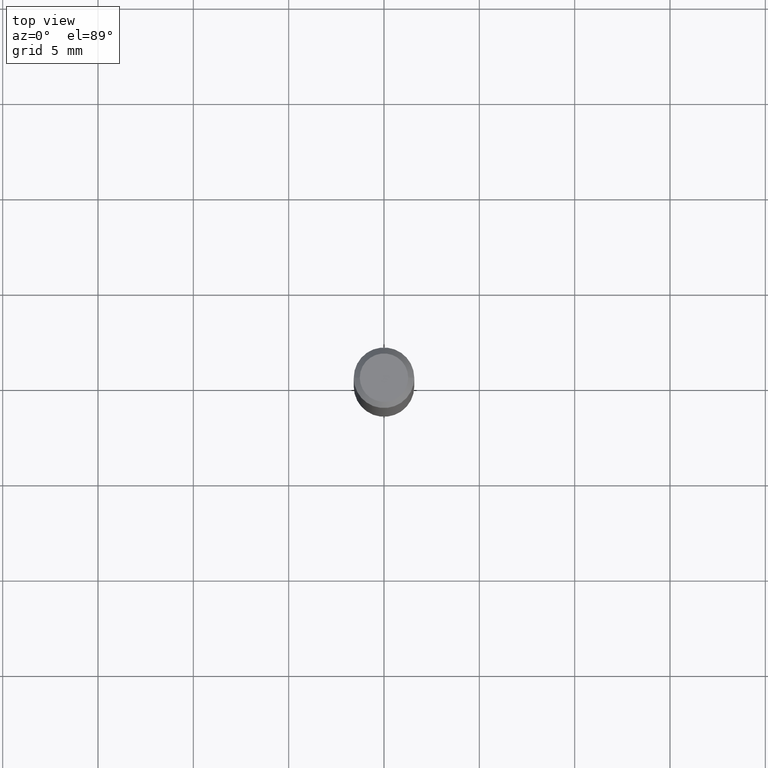
[diagram: clean part render]
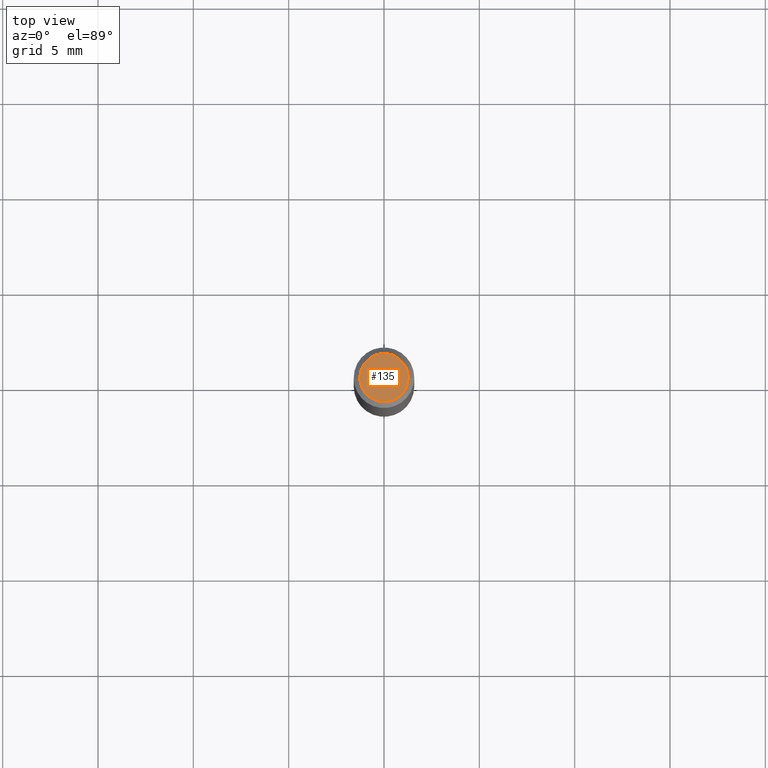
[diagram: same view with one face highlighted and labeled with its STEP entity id]
A machine part, top view. The second image highlights one B-rep face of the part: STEP entity #135.
In plain terms, the highlighted planar face has unit normal (0, -0, -1).
Its self-contained STEP definition (entity closure, byte-faithful):
#11 = AXIS2_PLACEMENT_3D ( 'NONE', #105, #183, #111 ) ;
#33 = CARTESIAN_POINT ( 'NONE',  ( 1.946643104841063088E-47, -2.779290439833033990E-33, -7.960204194457798443E-19 ) ) ;
#80 = CARTESIAN_POINT ( 'NONE',  ( 3.893286209682126177E-47, -5.558580879666067980E-33, -1.592040838891559689E-18 ) ) ;
#105 = CARTESIAN_POINT ( 'NONE',  ( 3.893286209682126177E-47, -5.558580879666067980E-33, -1.592040838891559689E-18 ) ) ;
#111 = DIRECTION ( 'NONE',  ( 1.000000000000000000, -6.982962677686265922E-15, 4.875957971899673662E-29 ) ) ;
#113 = PLANE ( 'NONE',  #429 ) ;
#123 = VERTEX_POINT ( 'NONE', #170 ) ;
#135 = ADVANCED_FACE ( 'NONE', ( #261 ), #113, .F. ) ;
#159 = EDGE_CURVE ( 'NONE', #123, #382, #256, .T. ) ;
#170 = CARTESIAN_POINT ( 'NONE',  ( 0.04999999999999999584, -4.077247707424184705E-16, -1.592040838888913461E-18 ) ) ;
#183 = DIRECTION ( 'NONE',  ( -2.445468806185136597E-29, 3.491481338843145583E-15, 1.000000000000000000 ) ) ;
#188 = DIRECTION ( 'NONE',  ( 1.000000000000000000, -6.982962677686265922E-15, 4.875957971899673662E-29 ) ) ;
#199 = CARTESIAN_POINT ( 'NONE',  ( -0.04999999999999999584, 3.709698922520826725E-16, -1.592040838894077649E-18 ) ) ;
#200 = ORIENTED_EDGE ( 'NONE', *, *, #159, .T. ) ;
#203 = AXIS2_PLACEMENT_3D ( 'NONE', #80, #449, #188 ) ;
#204 = ORIENTED_EDGE ( 'NONE', *, *, #206, .T. ) ;
#206 = EDGE_CURVE ( 'NONE', #382, #123, #390, .T. ) ;
#256 = CIRCLE ( 'NONE', #203, 0.04999999999999999584 ) ;
#260 = DIRECTION ( 'NONE',  ( 2.438088387897960049E-29, -3.491481338843145188E-15, -1.000000000000000000 ) ) ;
#261 = FACE_OUTER_BOUND ( 'NONE', #328, .T. ) ;
#328 = EDGE_LOOP ( 'NONE', ( #204, #200 ) ) ;
#382 = VERTEX_POINT ( 'NONE', #199 ) ;
#390 = CIRCLE ( 'NONE', #11, 0.04999999999999999584 ) ;
#429 = AXIS2_PLACEMENT_3D ( 'NONE', #33, #260, #485 ) ;
#449 = DIRECTION ( 'NONE',  ( -2.445468806185136597E-29, 3.491481338843145583E-15, 1.000000000000000000 ) ) ;
#485 = DIRECTION ( 'NONE',  ( -1.000000000000000000, 6.982962677686265922E-15, -4.876176775795935793E-29 ) ) ;